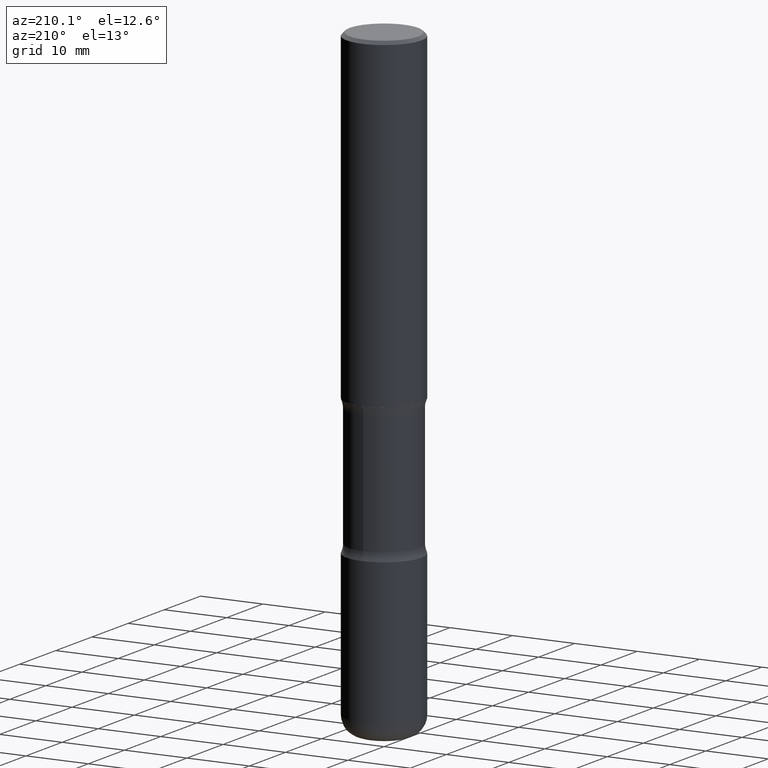
[diagram: clean part render]
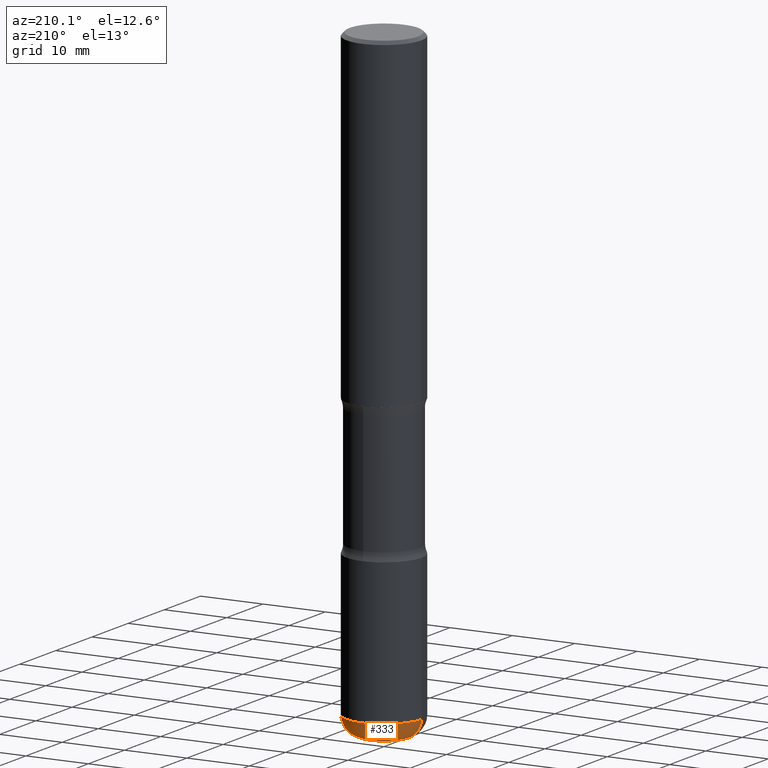
[diagram: same view with one face highlighted and labeled with its STEP entity id]
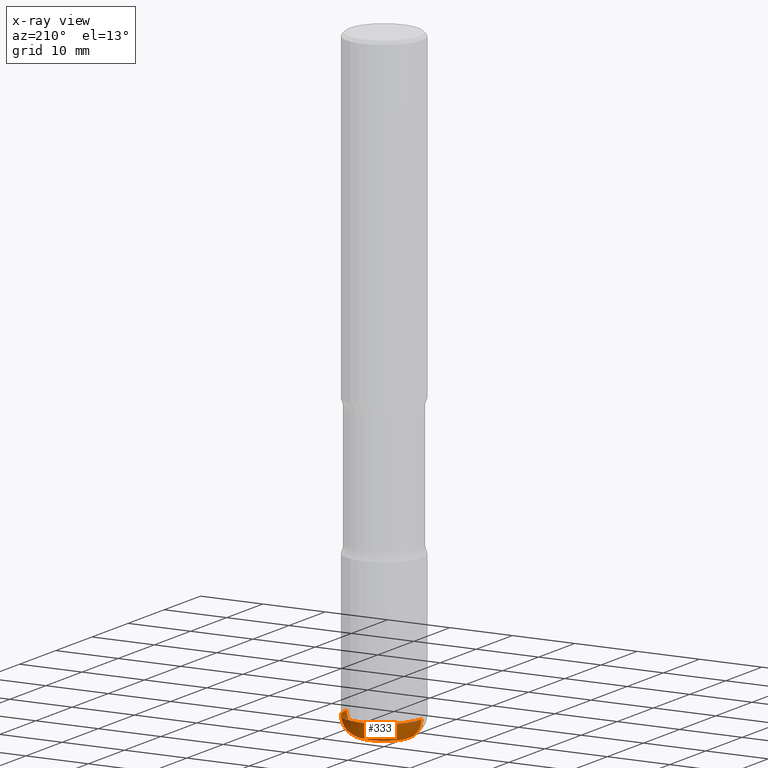
[diagram: x-ray of the same camera — body ghosted, the highlighted face saturated]
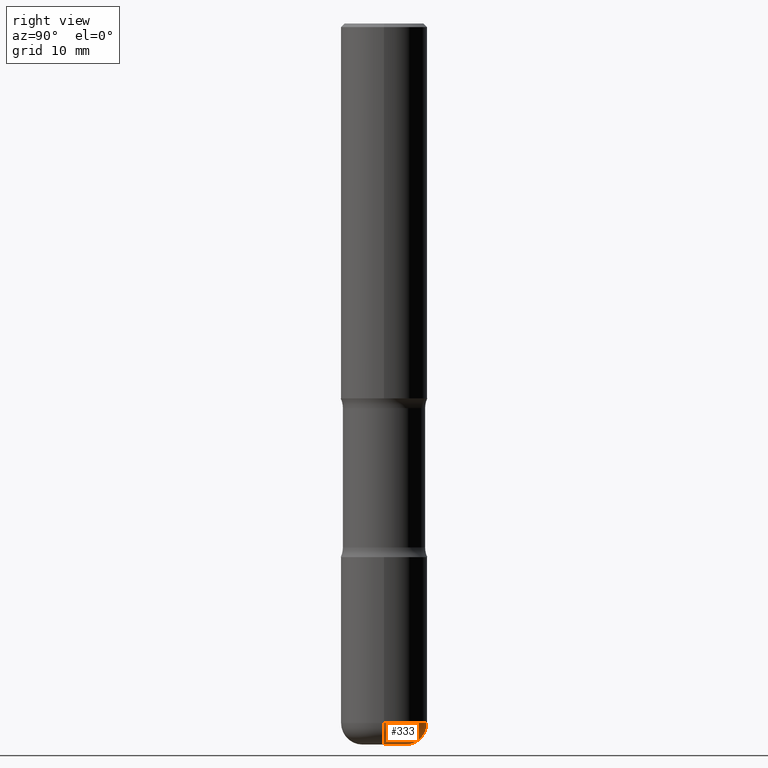
[diagram: same view with one face highlighted and labeled with its STEP entity id]
A machine part, auxiliary view. The second image highlights one B-rep face of the part: STEP entity #333.
The next image is the same camera in x-ray: the body ghosted, the highlighted face saturated — about 0% of this face is hidden behind the body in this view.
A second angle (right view) of the same face is appended — the face is thin or edge-on in the first view.
In plain terms, the highlighted toroidal blend (fillet) surface has major radius 2.9997 mm and minor (blend) radius 2.9997 mm.
Its self-contained STEP definition (entity closure, byte-faithful):
#12 = ORIENTED_EDGE ( 'NONE', *, *, #472, .F. ) ;
#14 = CIRCLE ( 'NONE', #237, 0.1181000000000002326 ) ;
#20 = DIRECTION ( 'NONE',  ( 7.105427357601001859E-15, 1.000000000000000000, -3.491481338843145583E-15 ) ) ;
#32 = DIRECTION ( 'NONE',  ( -2.445468806185136597E-29, 3.491481338843145583E-15, 1.000000000000000000 ) ) ;
#39 = CARTESIAN_POINT ( 'NONE',  ( 9.627810689950880306E-29, -1.374596203102546026E-14, -3.936999999999998945 ) ) ;
#45 = VERTEX_POINT ( 'NONE', #478 ) ;
#58 = VERTEX_POINT ( 'NONE', #381 ) ;
#70 = CIRCLE ( 'NONE', #124, 0.2362000000000002153 ) ;
#72 = ORIENTED_EDGE ( 'NONE', *, *, #173, .T. ) ;
#81 = CARTESIAN_POINT ( 'NONE',  ( 9.339000823940415305E-29, -1.333361808490808613E-14, -3.818899999999998851 ) ) ;
#100 = AXIS2_PLACEMENT_3D ( 'NONE', #513, #542, #549 ) ;
#116 = AXIS2_PLACEMENT_3D ( 'NONE', #81, #32, #242 ) ;
#124 = AXIS2_PLACEMENT_3D ( 'NONE', #462, #547, #413 ) ;
#166 = EDGE_LOOP ( 'NONE', ( #358, #72, #12, #517 ) ) ;
#173 = EDGE_CURVE ( 'NONE', #58, #45, #499, .T. ) ;
#209 = DIRECTION ( 'NONE',  ( -2.445468806185136597E-29, 3.491481338843145583E-15, 1.000000000000000000 ) ) ;
#237 = AXIS2_PLACEMENT_3D ( 'NONE', #39, #209, #433 ) ;
#242 = DIRECTION ( 'NONE',  ( 1.000000000000000000, -6.982962677686266711E-15, 4.883557194083113462E-29 ) ) ;
#246 = EDGE_CURVE ( 'NONE', #524, #58, #14, .T. ) ;
#291 = CARTESIAN_POINT ( 'NONE',  ( 0.1181000000000002326, -1.457064992326021168E-14, -3.936999999999998945 ) ) ;
#321 = EDGE_CURVE ( 'NONE', #524, #497, #339, .T. ) ;
#323 = AXIS2_PLACEMENT_3D ( 'NONE', #496, #20, #525 ) ;
#329 = FACE_OUTER_BOUND ( 'NONE', #166, .T. ) ;
#333 = ADVANCED_FACE ( 'NONE', ( #329 ), #416, .T. ) ;
#339 = CIRCLE ( 'NONE', #100, 0.1180999999999999828 ) ;
#358 = ORIENTED_EDGE ( 'NONE', *, *, #246, .T. ) ;
#381 = CARTESIAN_POINT ( 'NONE',  ( -0.1181000000000002326, -1.228106360156775550E-14, -3.936999999999998945 ) ) ;
#413 = DIRECTION ( 'NONE',  ( 1.000000000000000000, -6.982962677686266711E-15, 0.000000000000000000 ) ) ;
#416 = TOROIDAL_SURFACE ( 'NONE', #116, 0.1181000000000002187, 0.1180999999999999966 ) ;
#419 = CARTESIAN_POINT ( 'NONE',  ( 0.2362000000000002153, -1.498299386937758423E-14, -3.818899999999998851 ) ) ;
#433 = DIRECTION ( 'NONE',  ( 1.000000000000000000, -6.982962677686275388E-15, 0.000000000000000000 ) ) ;
#462 = CARTESIAN_POINT ( 'NONE',  ( 9.339000823940415305E-29, -1.333361808490808613E-14, -3.818899999999998851 ) ) ;
#472 = EDGE_CURVE ( 'NONE', #497, #45, #70, .T. ) ;
#478 = CARTESIAN_POINT ( 'NONE',  ( -0.2362000000000002153, -1.165531614304272658E-14, -3.818899999999998851 ) ) ;
#496 = CARTESIAN_POINT ( 'NONE',  ( -0.1181000000000002187, -1.249446711397540556E-14, -3.818899999999998851 ) ) ;
#497 = VERTEX_POINT ( 'NONE', #419 ) ;
#499 = CIRCLE ( 'NONE', #323, 0.1180999999999999828 ) ;
#513 = CARTESIAN_POINT ( 'NONE',  ( 0.1181000000000002187, -1.415830597714283439E-14, -3.818899999999998851 ) ) ;
#517 = ORIENTED_EDGE ( 'NONE', *, *, #321, .F. ) ;
#524 = VERTEX_POINT ( 'NONE', #291 ) ;
#525 = DIRECTION ( 'NONE',  ( -1.000000000000000000, 7.105427357601005014E-15, 0.000000000000000000 ) ) ;
#542 = DIRECTION ( 'NONE',  ( -6.982962677686266711E-15, -1.000000000000000000, 3.491481338843145583E-15 ) ) ;
#547 = DIRECTION ( 'NONE',  ( -2.445468806185136597E-29, 3.491481338843145583E-15, 1.000000000000000000 ) ) ;
#549 = DIRECTION ( 'NONE',  ( 1.000000000000000000, -6.982962677686273810E-15, 0.000000000000000000 ) ) ;